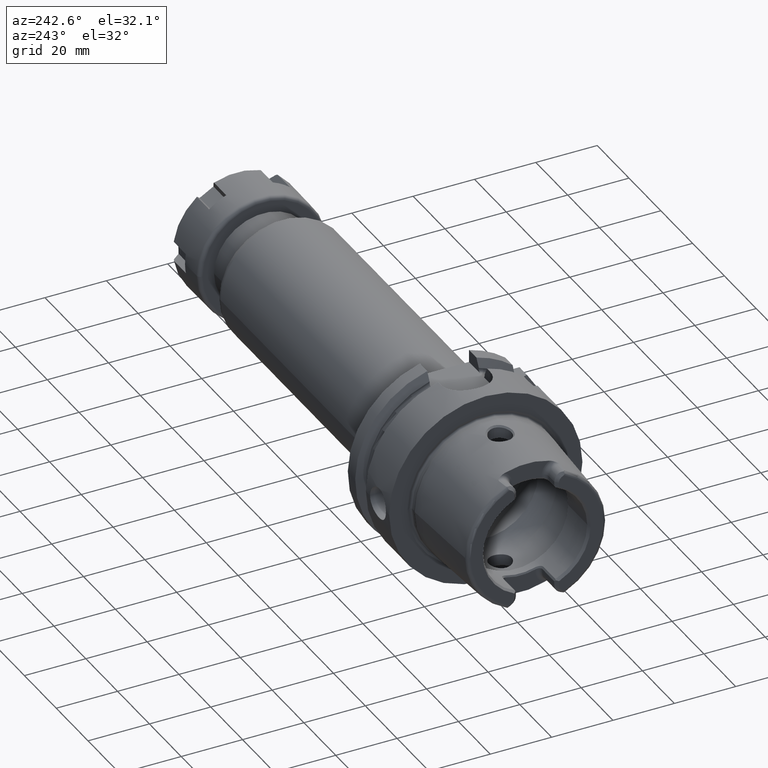
[diagram: clean part render]
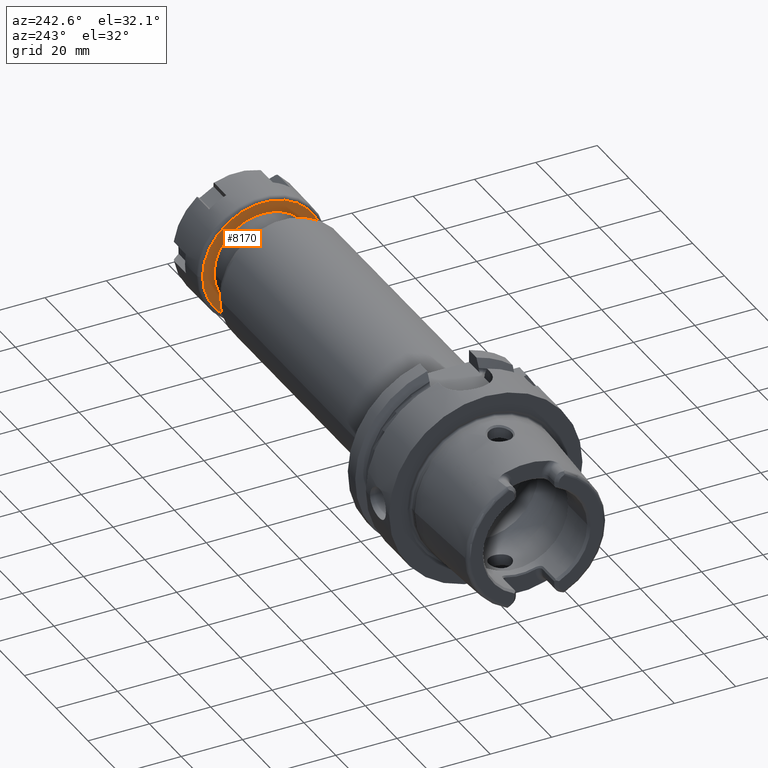
[diagram: same view with one face highlighted and labeled with its STEP entity id]
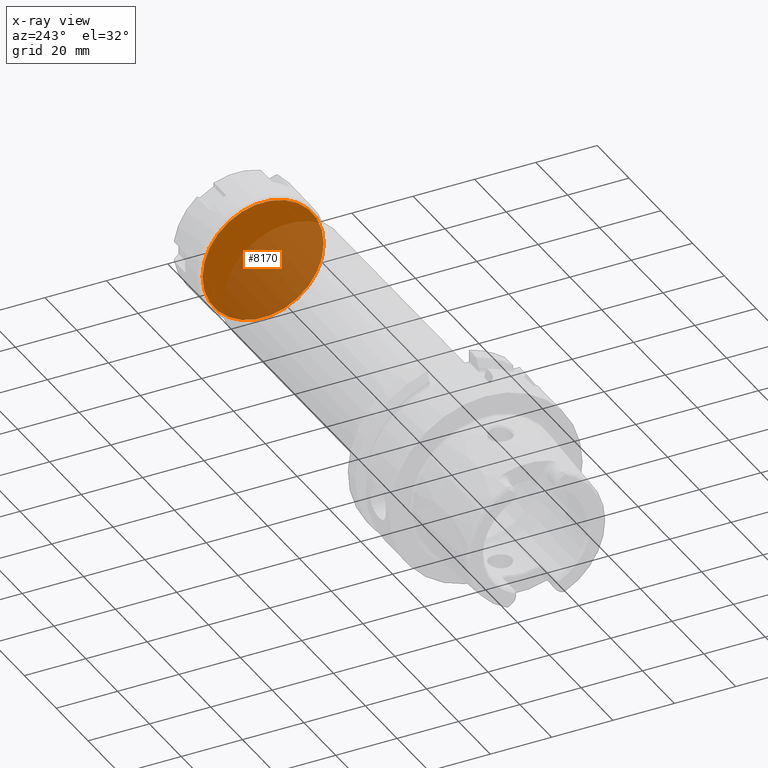
[diagram: x-ray of the same camera — body ghosted, the highlighted face saturated]
A machine part, auxiliary view. The second image highlights one B-rep face of the part: STEP entity #8170.
The next image is the same camera in x-ray: the body ghosted, the highlighted face saturated — about 62% of this face is hidden behind the body in this view.
In plain terms, the highlighted planar face has unit normal (1, 0, 0).
Its self-contained STEP definition (entity closure, byte-faithful):
#7214=CARTESIAN_POINT('',(-2.331468351713E-14,0.E0,0.E0));
#7215=DIRECTION('',(-1.E0,0.E0,0.E0));
#7216=DIRECTION('',(0.E0,1.E0,0.E0));
#7217=AXIS2_PLACEMENT_3D('',#7214,#7215,#7216);
#7219=CARTESIAN_POINT('',(-2.420286193683E-14,0.E0,0.E0));
#7220=DIRECTION('',(-1.E0,0.E0,0.E0));
#7221=DIRECTION('',(0.E0,-1.E0,0.E0));
#7222=AXIS2_PLACEMENT_3D('',#7219,#7220,#7221);
#7418=CARTESIAN_POINT('',(0.E0,1.975E1,0.E0));
#7419=CARTESIAN_POINT('',(-4.569356216284E-14,-1.975E1,0.E0));
#7420=VERTEX_POINT('',#7418);
#7421=VERTEX_POINT('',#7419);
#8160=CARTESIAN_POINT('',(-2.375877272698E-14,0.E0,0.E0));
#8161=DIRECTION('',(1.E0,0.E0,0.E0));
#8162=DIRECTION('',(0.E0,-1.E0,0.E0));
#8163=AXIS2_PLACEMENT_3D('',#8160,#8161,#8162);
#8164=PLANE('',#8163);
#8166=ORIENTED_EDGE('',*,*,#8165,.F.);
#8167=ORIENTED_EDGE('',*,*,#8150,.F.);
#8168=EDGE_LOOP('',(#8166,#8167));
#8169=FACE_OUTER_BOUND('',#8168,.F.);
#8170=ADVANCED_FACE('',(#8169),#8164,.F.);
#7218=CIRCLE('',#7217,1.975E1);
#7223=CIRCLE('',#7222,1.975E1);
#8150=EDGE_CURVE('',#7421,#7420,#7223,.T.);
#8165=EDGE_CURVE('',#7420,#7421,#7218,.T.);